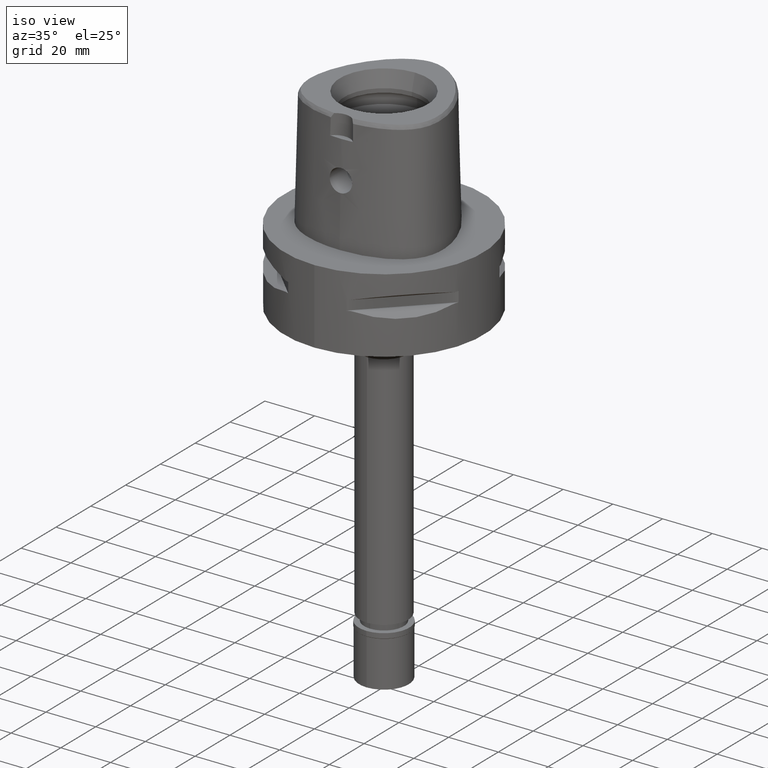
[diagram: clean part render]
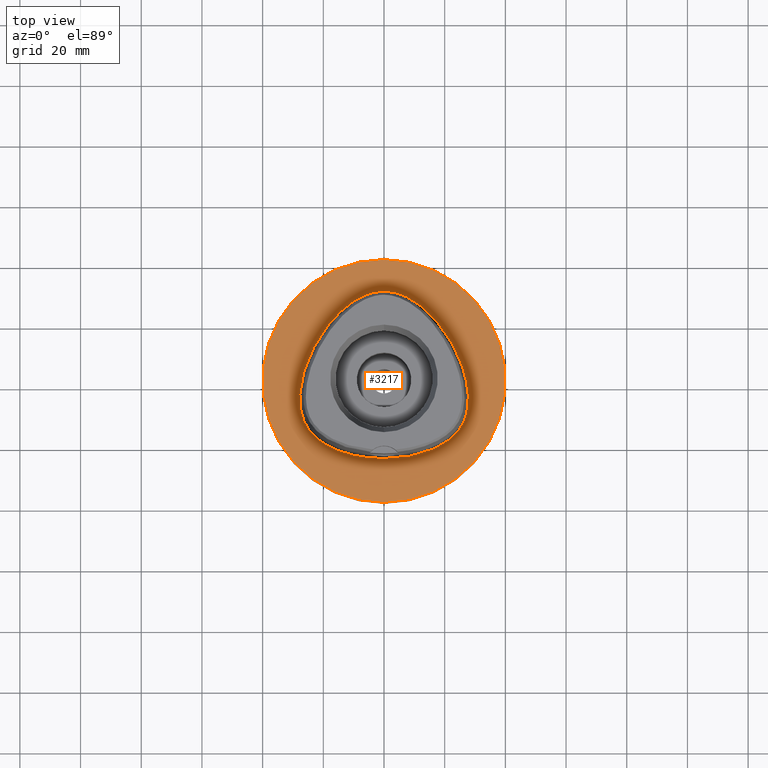
[diagram: tour spotlight — one face highlighted and labeled with its STEP entity id]
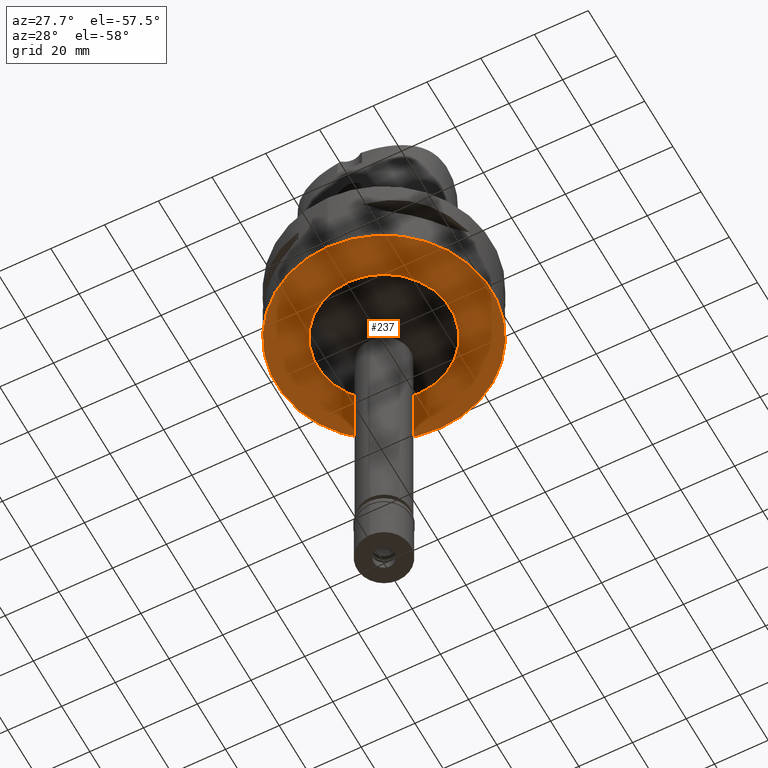
[diagram: tour spotlight — one face highlighted and labeled with its STEP entity id]
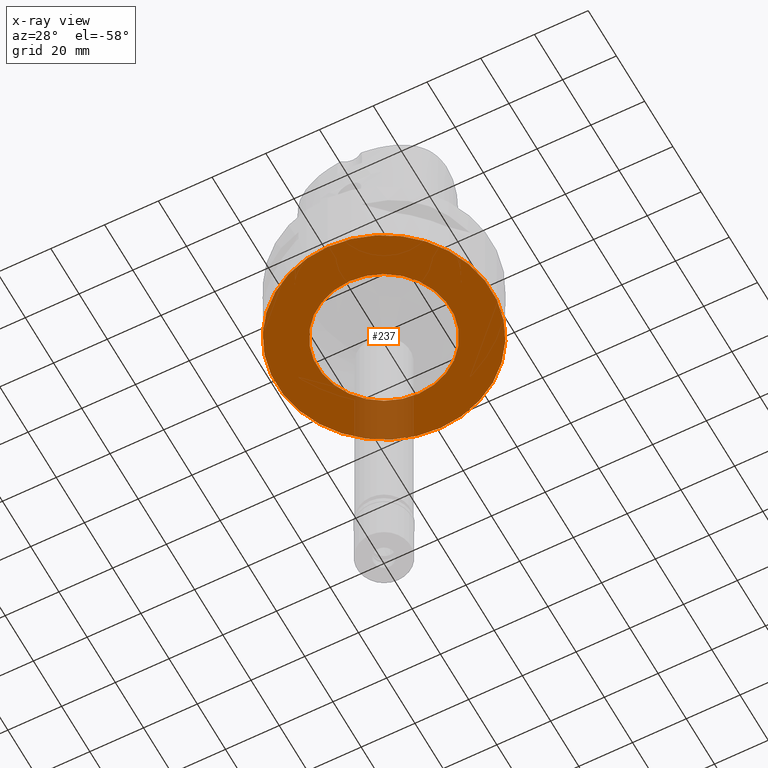
[diagram: x-ray of the same camera — body ghosted, this tour face saturated]
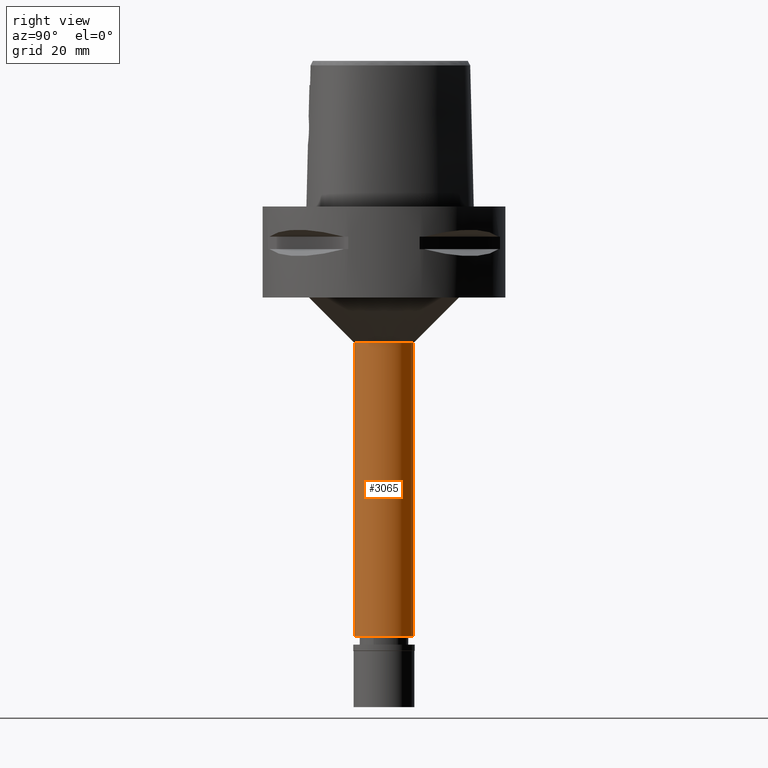
[diagram: tour spotlight — one face highlighted and labeled with its STEP entity id]
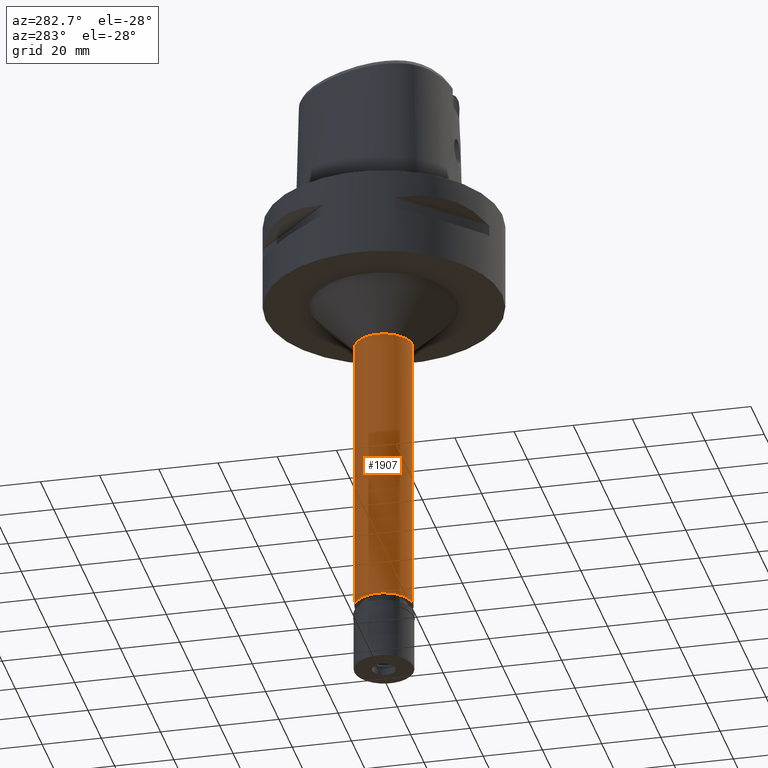
[diagram: tour spotlight — one face highlighted and labeled with its STEP entity id]
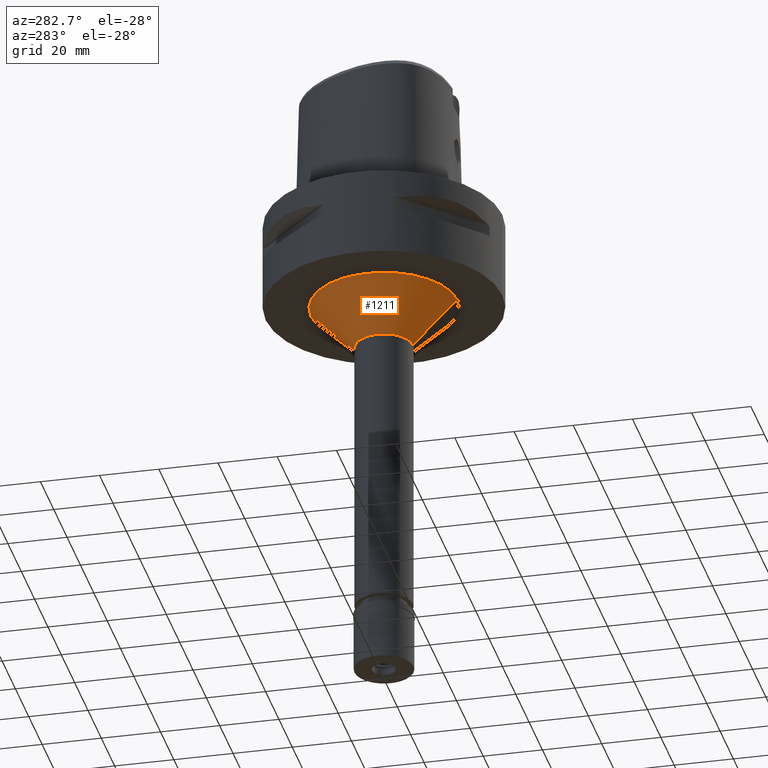
[diagram: tour spotlight — one face highlighted and labeled with its STEP entity id]
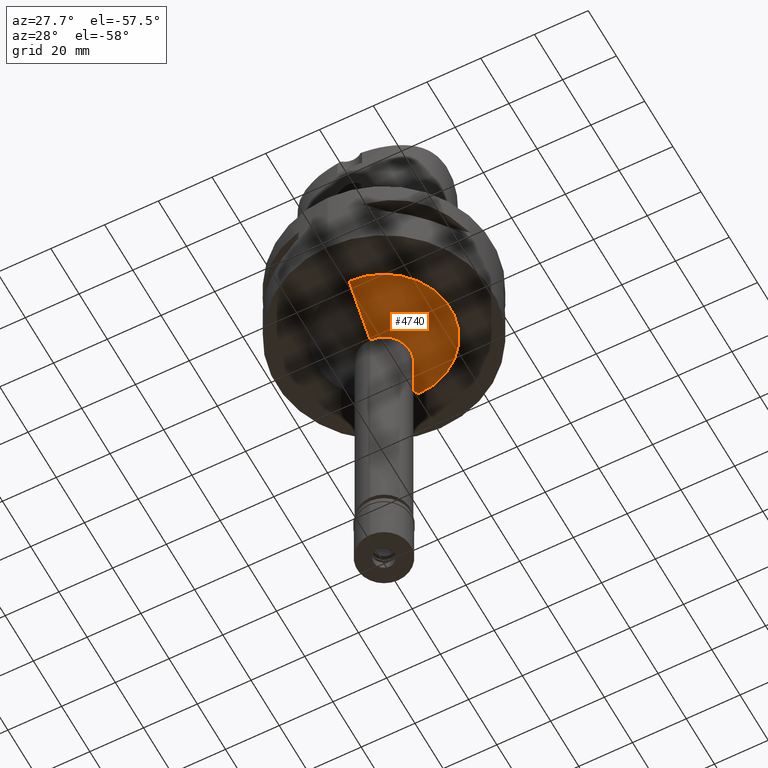
[diagram: tour spotlight — one face highlighted and labeled with its STEP entity id]
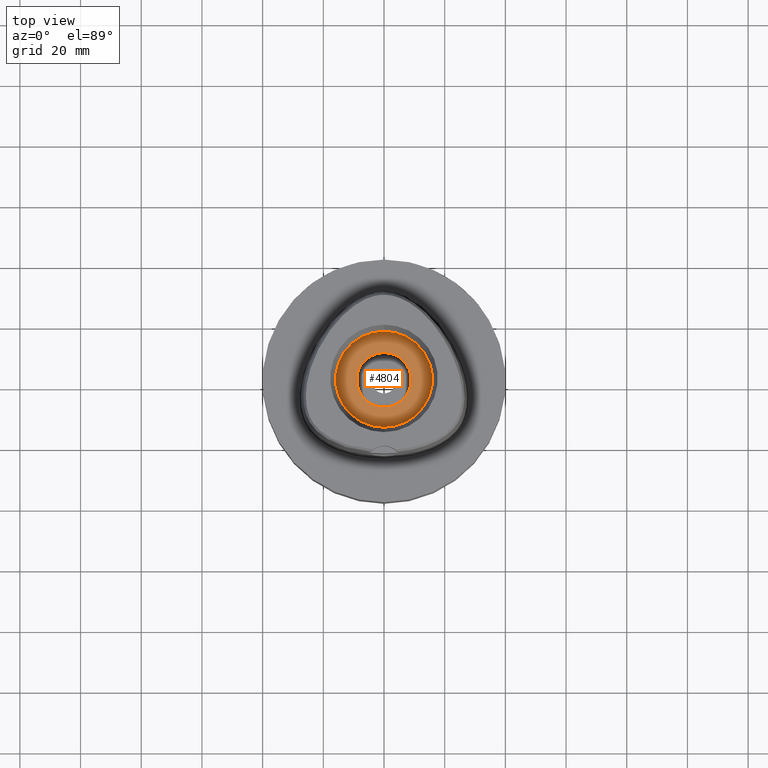
[diagram: tour spotlight — one face highlighted and labeled with its STEP entity id]
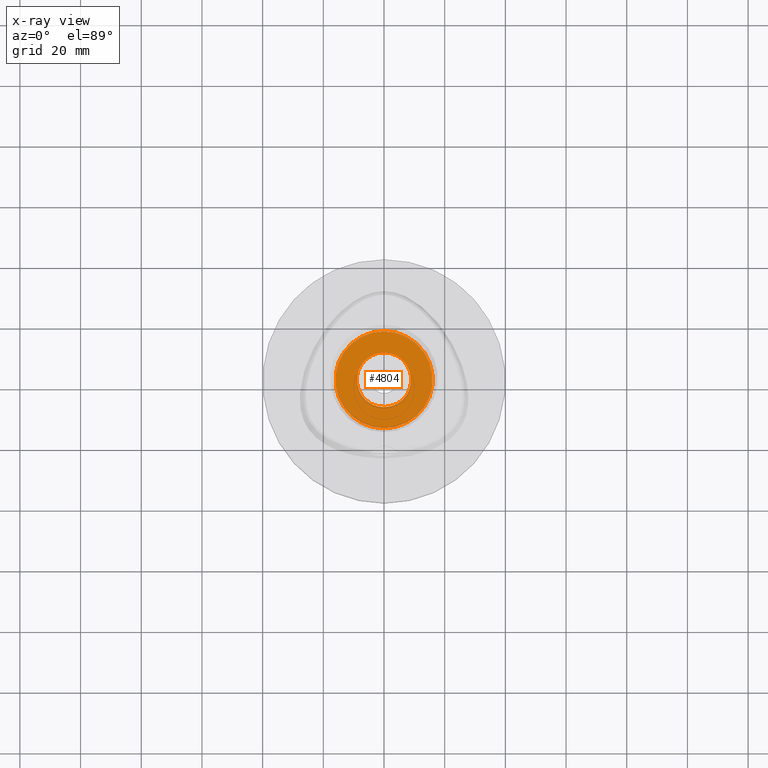
[diagram: x-ray of the same camera — body ghosted, this tour face saturated]
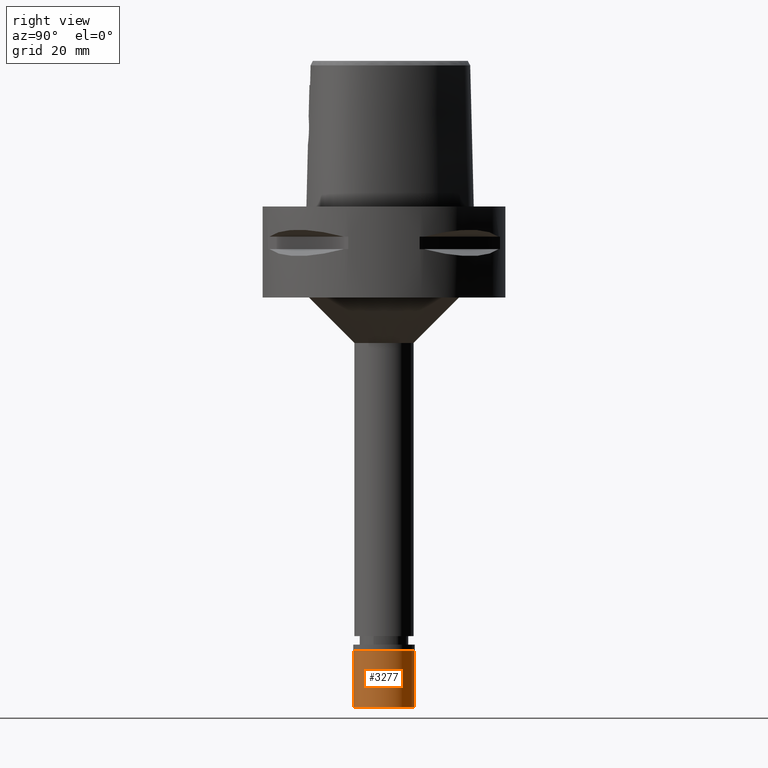
[diagram: tour spotlight — one face highlighted and labeled with its STEP entity id]
A machine part: a face-by-face anatomy tour. The part has 98 B-rep faces; the first image is the clean iso view, then the 8 largest visible faces are spotlighted one at a time (largest first), each with its STEP entity span.

Face 1 — top view, entity #3217. In plain terms, the highlighted planar face has unit normal (0, 0, -1).
Definition (entity closure, byte-faithful):
#14 = EDGE_CURVE ( 'NONE', #3583, #1457, #2103, .T. ) ;
#150 = CARTESIAN_POINT ( 'NONE',  ( 0.0000000000000000000, 40.00000000000000000, -2.131628207279999844E-14 ) ) ;
#220 = VERTEX_POINT ( 'NONE', #3888 ) ;
#245 = CARTESIAN_POINT ( 'NONE',  ( -3.149084873927517236, 29.34015624734590588, 1.081107220890151210E-07 ) ) ;
#330 = CARTESIAN_POINT ( 'NONE',  ( -25.20914249734864754, 6.827421873979051092, 1.081107220890151210E-07 ) ) ;
#361 = CARTESIAN_POINT ( 'NONE',  ( -1.049694957958702712, 29.57499999730015006, 1.081107220890151210E-07 ) ) ;
#429 = CARTESIAN_POINT ( 'NONE',  ( 22.33885471494222585, 12.89734378305838369, -2.633948435770173957E-06 ) ) ;
#648 = CARTESIAN_POINT ( 'NONE',  ( -18.55019648953511435, -21.45394531012197703, 1.081107220890151210E-07 ) ) ;
#700 = CARTESIAN_POINT ( 'NONE',  ( -25.63812389625229216, -14.80217773302317141, 1.081107220890151210E-07 ) ) ;
#827 = CARTESIAN_POINT ( 'NONE',  ( 18.55019652241081118, -21.45394537051418382, -2.633948435770173957E-06 ) ) ;
#852 = CARTESIAN_POINT ( 'NONE',  ( 9.304563441065136331, 26.79191411885718210, -2.633948435770173957E-06 ) ) ;
#894 = EDGE_CURVE ( 'NONE', #220, #4710, #1196, .T. ) ;
#904 = CARTESIAN_POINT ( 'NONE',  ( 23.43253033493974868, -17.76420414757017952, -2.633948435770173957E-06 ) ) ;
#905 = CARTESIAN_POINT ( 'NONE',  ( 0.0000000000000000000, 1.320781572880000066E-14, -2.131628207279999844E-14 ) ) ;
#931 = CARTESIAN_POINT ( 'NONE',  ( 17.75297956281007217, 19.52218754203904894, -2.633948435770173957E-06 ) ) ;
#1036 = DIRECTION ( 'NONE',  ( 0.0000000000000000000, 1.000000000000000000, 0.0000000000000000000 ) ) ;
#1067 = B_SPLINE_CURVE_WITH_KNOTS ( 'NONE', 3,
 ( #2315, #361, #245, #1902, #3871, #1852, #3897, #3929, #330, #3434, #2239, #1098, #5142, #1467, #2686, #700, #2292, #3483, #1569, #648, #3816, #5029, #5081, #3089, #4694 ),
 .UNSPECIFIED., .F., .F.,
 ( 4, 1, 1, 1, 1, 1, 1, 1, 1, 1, 1, 1, 1, 1, 1, 1, 1, 1, 1, 1, 1, 1, 4 ),
 ( 0.0000000000000000000, 0.04166666666704999661, 0.08333333333368000972, 0.1250000000003000100, 0.1666666666670000019, 0.2500000000002000067, 0.3333333333335000148, 0.4166666666668000230, 0.4583333333333999837, 0.5000000000001000311, 0.5416666666667000474, 0.5833333333333000637, 0.6250000000000000000, 0.6458333333333000637, 0.6666666666667000474, 0.6874999999999000799, 0.7083333333332000326, 0.7499999999999000799, 0.7916666666666000163, 0.8333333333331000015, 0.8749999999998000488, 0.9166666666664999852, 1.000000000000000000 ),
 .UNSPECIFIED. ) ;
#1098 = CARTESIAN_POINT ( 'NONE',  ( -27.85475989473649250, -5.337968750068384338, 1.081107220890151210E-07 ) ) ;
#1126 = AXIS2_PLACEMENT_3D ( 'NONE', #1342, #4515, #2919 ) ;
#1196 = B_SPLINE_CURVE_WITH_KNOTS ( 'NONE', 3,
 ( #2806, #2829, #3709, #1613, #1252, #827, #1689, #904, #4415, #4864, #2097, #4815, #4108, #1714, #3683, #4393, #3294, #429, #931, #2497, #852, #2446, #4025, #3198, #3999 ),
 .UNSPECIFIED., .F., .F.,
 ( 4, 1, 1, 1, 1, 1, 1, 1, 1, 1, 1, 1, 1, 1, 1, 1, 1, 1, 1, 1, 1, 1, 4 ),
 ( 0.0000000000000000000, 0.08333333333340001148, 0.1250000000000000000, 0.1666666666667000196, 0.2083333333333000081, 0.2500000000000000000, 0.2916666666666999919, 0.3124999999998999689, 0.3333333333332000326, 0.3541666666666000163, 0.3749999999998999689, 0.4166666666666000163, 0.4583333333332000326, 0.4999999999997999933, 0.5416666666664999852, 0.5833333333331000015, 0.6666666666664999852, 0.7499999999997000177, 0.8333333333329999704, 0.8749999999995999866, 0.9166666666663000340, 0.9583333333329000503, 1.000000000000000000 ),
 .UNSPECIFIED. ) ;
#1252 = CARTESIAN_POINT ( 'NONE',  ( 15.29776368685573118, -22.96525396773072814, -2.633948435770173957E-06 ) ) ;
#1342 = CARTESIAN_POINT ( 'NONE',  ( 0.0000000000000000000, 1.320781572880000066E-14, -2.131628207279999844E-14 ) ) ;
#1457 = VERTEX_POINT ( 'NONE', #2662 ) ;
#1460 = AXIS2_PLACEMENT_3D ( 'NONE', #1891, #3886, #4306 ) ;
#1467 = CARTESIAN_POINT ( 'NONE',  ( -27.10051717109255165, -11.41106445238337486, 1.081107220890151210E-07 ) ) ;
#1503 = FACE_BOUND ( 'NONE', #3933, .T. ) ;
#1531 = FACE_OUTER_BOUND ( 'NONE', #2159, .T. ) ;
#1569 = CARTESIAN_POINT ( 'NONE',  ( -21.42129059199266905, -19.59889648221216518, 1.081107220890151210E-07 ) ) ;
#1613 = CARTESIAN_POINT ( 'NONE',  ( 11.74025987196654874, -24.13566412617133494, -2.633948435770173957E-06 ) ) ;
#1689 = CARTESIAN_POINT ( 'NONE',  ( 21.42129063364858510, -19.59889653705179668, -2.633948435770173957E-06 ) ) ;
#1714 = CARTESIAN_POINT ( 'NONE',  ( 27.85475996346920624, -5.337968748343277170, -2.633948435770173957E-06 ) ) ;
#1832 = PLANE ( 'NONE',  #1460 ) ;
#1852 = CARTESIAN_POINT ( 'NONE',  ( -13.21796080366969761, 24.04386718545104884, 1.081107220890151210E-07 ) ) ;
#1891 = CARTESIAN_POINT ( 'NONE',  ( 0.0000000000000000000, 1.224646799146999965E-14, 0.0000000000000000000 ) ) ;
#1902 = CARTESIAN_POINT ( 'NONE',  ( -6.262496943741631128, 28.35083007561321367, 1.081107220890151210E-07 ) ) ;
#2097 = CARTESIAN_POINT ( 'NONE',  ( 26.34912743261734036, -13.39455080774210849, -2.633948435770173957E-06 ) ) ;
#2103 = CIRCLE ( 'NONE', #2352, 40.00000000000000000 ) ;
#2159 = EDGE_LOOP ( 'NONE', ( #2986, #5145 ) ) ;
#2239 = CARTESIAN_POINT ( 'NONE',  ( -27.53737511592663623, -1.765625000409068557, 1.081107220890151210E-07 ) ) ;
#2292 = CARTESIAN_POINT ( 'NONE',  ( -24.77458493275388918, -16.12173827965531459, 1.081107220890151210E-07 ) ) ;
#2315 = CARTESIAN_POINT ( 'NONE',  ( 3.059999461773999954E-11, 29.57499999998999840, 5.010806584474999824E-14 ) ) ;
#2352 = AXIS2_PLACEMENT_3D ( 'NONE', #905, #2498, #1036 ) ;
#2446 = CARTESIAN_POINT ( 'NONE',  ( 6.262496970401580043, 28.35083013911295069, -2.633948435770173957E-06 ) ) ;
#2497 = CARTESIAN_POINT ( 'NONE',  ( 13.21796084896444512, 24.04386723739236231, -2.633948435770173957E-06 ) ) ;
#2498 = DIRECTION ( 'NONE',  ( 0.0000000000000000000, 0.0000000000000000000, -1.000000000000000000 ) ) ;
#2518 = EDGE_CURVE ( 'NONE', #1457, #3583, #3853, .T. ) ;
#2662 = CARTESIAN_POINT ( 'NONE',  ( 0.0000000000000000000, -40.00000000000000000, -2.131628207279999844E-14 ) ) ;
#2686 = CARTESIAN_POINT ( 'NONE',  ( -26.34912736971354619, -13.39455078015881817, 1.081107220890151210E-07 ) ) ;
#2806 = CARTESIAN_POINT ( 'NONE',  ( -1.130678250848000183E-11, -25.57499999999999929, 5.651035195341998828E-14 ) ) ;
#2829 = CARTESIAN_POINT ( 'NONE',  ( 2.676740189128766989, -25.57500006583954644, -2.633948435770173957E-06 ) ) ;
#2919 = DIRECTION ( 'NONE',  ( 0.0000000000000000000, -1.000000000000000000, 0.0000000000000000000 ) ) ;
#2942 = ORIENTED_EDGE ( 'NONE', *, *, #4456, .F. ) ;
#2986 = ORIENTED_EDGE ( 'NONE', *, *, #14, .F. ) ;
#3089 = CARTESIAN_POINT ( 'NONE',  ( -2.676740185393376326, -25.57499999729582285, 1.081107220890151210E-07 ) ) ;
#3198 = CARTESIAN_POINT ( 'NONE',  ( 1.049694963074945697, 29.57500006583937235, -2.633948435770173957E-06 ) ) ;
#3217 = ADVANCED_FACE ( 'NONE', ( #1531, #1503 ), #1832, .F. ) ;
#3294 = CARTESIAN_POINT ( 'NONE',  ( 25.20914256104954276, 6.827421899879437817, -2.633948435770173957E-06 ) ) ;
#3434 = CARTESIAN_POINT ( 'NONE',  ( -26.77222814008693774, 1.900468749305304295, 1.081107220890151210E-07 ) ) ;
#3483 = CARTESIAN_POINT ( 'NONE',  ( -23.43253028553446882, -17.76420409967707670, 1.081107220890151210E-07 ) ) ;
#3583 = VERTEX_POINT ( 'NONE', #150 ) ;
#3683 = CARTESIAN_POINT ( 'NONE',  ( 27.53737518383180571, -1.765624990037506725, -2.633948435770173957E-06 ) ) ;
#3709 = CARTESIAN_POINT ( 'NONE',  ( 6.691850472877435507, -25.24546881543191645, -2.633948435770173533E-06 ) ) ;
#3816 = CARTESIAN_POINT ( 'NONE',  ( -15.29776366188092496, -22.96525390373262709, 1.081107220890151210E-07 ) ) ;
#3853 = CIRCLE ( 'NONE', #1126, 40.00000000000000000 ) ;
#3871 = CARTESIAN_POINT ( 'NONE',  ( -9.304563405199751003, 26.79191406018855659, 1.081107220890151210E-07 ) ) ;
#3886 = DIRECTION ( 'NONE',  ( 0.0000000000000000000, 0.0000000000000000000, -1.000000000000000000 ) ) ;
#3888 = CARTESIAN_POINT ( 'NONE',  ( -1.130678250848000183E-11, -25.57499999999999929, 5.651035195341998828E-14 ) ) ;
#3897 = CARTESIAN_POINT ( 'NONE',  ( -17.75297950960305116, 19.52218749826894850, 1.081107220890151210E-07 ) ) ;
#3929 = CARTESIAN_POINT ( 'NONE',  ( -22.33885465532980419, 12.89734374864895017, 1.081107220890151210E-07 ) ) ;
#3933 = EDGE_LOOP ( 'NONE', ( #2942, #4385 ) ) ;
#3999 = CARTESIAN_POINT ( 'NONE',  ( 3.059999461773999954E-11, 29.57499999998999840, 5.010806584474999824E-14 ) ) ;
#4025 = CARTESIAN_POINT ( 'NONE',  ( 3.149084888733518106, 29.34015631472895791, -2.633948435770173957E-06 ) ) ;
#4108 = CARTESIAN_POINT ( 'NONE',  ( 27.68378760405586192, -8.751933602060036677, -2.633948435770173957E-06 ) ) ;
#4306 = DIRECTION ( 'NONE',  ( 0.0000000000000000000, -1.000000000000000000, 0.0000000000000000000 ) ) ;
#4348 = CARTESIAN_POINT ( 'NONE',  ( 3.059999461773999954E-11, 29.57499999998999840, 5.010806584474999824E-14 ) ) ;
#4385 = ORIENTED_EDGE ( 'NONE', *, *, #894, .F. ) ;
#4393 = CARTESIAN_POINT ( 'NONE',  ( 26.77222820646014512, 1.900468766925591968, -2.633948435770173957E-06 ) ) ;
#4415 = CARTESIAN_POINT ( 'NONE',  ( 24.77458498809630072, -16.12173832031961496, -2.633948435770173957E-06 ) ) ;
#4456 = EDGE_CURVE ( 'NONE', #4710, #220, #1067, .T. ) ;
#4515 = DIRECTION ( 'NONE',  ( 0.0000000000000000000, 0.0000000000000000000, -1.000000000000000000 ) ) ;
#4694 = CARTESIAN_POINT ( 'NONE',  ( -1.130678250848000183E-11, -25.57499999999999929, 5.651035195341998828E-14 ) ) ;
#4710 = VERTEX_POINT ( 'NONE', #4348 ) ;
#4815 = CARTESIAN_POINT ( 'NONE',  ( 27.10051723727178086, -11.41106447122930234, -2.633948435770173957E-06 ) ) ;
#4864 = CARTESIAN_POINT ( 'NONE',  ( 25.63812395573939185, -14.80217776736918189, -2.633948435770173957E-06 ) ) ;
#5029 = CARTESIAN_POINT ( 'NONE',  ( -11.74025985405224226, -24.13566405988820662, 1.081107220890151210E-07 ) ) ;
#5081 = CARTESIAN_POINT ( 'NONE',  ( -6.691850463454485087, -25.24546874731456114, 1.081107220890151210E-07 ) ) ;
#5142 = CARTESIAN_POINT ( 'NONE',  ( -27.68378753573384188, -8.751933593408192991, 1.081107220890151210E-07 ) ) ;
#5145 = ORIENTED_EDGE ( 'NONE', *, *, #2518, .F. ) ;

Face 2 — auxiliary view, entity #237. An x-ray twin of the same camera follows (body ghosted, this face saturated) — the face is partly hidden behind the body. In plain terms, the highlighted planar face has unit normal (0, 0, -1).
Definition (entity closure, byte-faithful):
#1 = CARTESIAN_POINT ( 'NONE',  ( 0.0000000000000000000, 24.75000000000000000, -30.00000000000000000 ) ) ;
#20 = DIRECTION ( 'NONE',  ( 0.0000000000000000000, 0.0000000000000000000, -1.000000000000000000 ) ) ;
#40 = ORIENTED_EDGE ( 'NONE', *, *, #2521, .F. ) ;
#237 = ADVANCED_FACE ( 'NONE', ( #3945, #3133 ), #3528, .T. ) ;
#377 = CARTESIAN_POINT ( 'NONE',  ( 0.0000000000000000000, 0.0000000000000000000, -30.00000000000000000 ) ) ;
#956 = CARTESIAN_POINT ( 'NONE',  ( 0.0000000000000000000, 1.320781572880000066E-14, -30.00000000000000000 ) ) ;
#1096 = AXIS2_PLACEMENT_3D ( 'NONE', #4988, #3048, #5038 ) ;
#1232 = AXIS2_PLACEMENT_3D ( 'NONE', #2191, #1414, #2991 ) ;
#1357 = AXIS2_PLACEMENT_3D ( 'NONE', #377, #1973, #2528 ) ;
#1414 = DIRECTION ( 'NONE',  ( 0.0000000000000000000, 0.0000000000000000000, -1.000000000000000000 ) ) ;
#1436 = CARTESIAN_POINT ( 'NONE',  ( 0.0000000000000000000, -24.75000000000000000, -30.00000000000000000 ) ) ;
#1579 = DIRECTION ( 'NONE',  ( 0.0000000000000000000, -1.000000000000000000, 0.0000000000000000000 ) ) ;
#1620 = ORIENTED_EDGE ( 'NONE', *, *, #3430, .F. ) ;
#1684 = CARTESIAN_POINT ( 'NONE',  ( 0.0000000000000000000, 40.00000000000000000, -30.00000000000000000 ) ) ;
#1924 = VERTEX_POINT ( 'NONE', #1436 ) ;
#1973 = DIRECTION ( 'NONE',  ( 0.0000000000000000000, 0.0000000000000000000, -1.000000000000000000 ) ) ;
#1987 = ORIENTED_EDGE ( 'NONE', *, *, #3861, .F. ) ;
#2086 = EDGE_LOOP ( 'NONE', ( #40, #1987 ) ) ;
#2131 = CIRCLE ( 'NONE', #1232, 24.75000000000000000 ) ;
#2191 = CARTESIAN_POINT ( 'NONE',  ( 0.0000000000000000000, 0.0000000000000000000, -30.00000000000000000 ) ) ;
#2521 = EDGE_CURVE ( 'NONE', #3537, #3009, #4532, .T. ) ;
#2528 = DIRECTION ( 'NONE',  ( 0.0000000000000000000, -1.000000000000000000, 0.0000000000000000000 ) ) ;
#2544 = DIRECTION ( 'NONE',  ( 0.0000000000000000000, 1.000000000000000000, 0.0000000000000000000 ) ) ;
#2767 = EDGE_CURVE ( 'NONE', #5026, #1924, #2131, .T. ) ;
#2803 = CARTESIAN_POINT ( 'NONE',  ( 0.0000000000000000000, 0.0000000000000000000, -30.00000000000000000 ) ) ;
#2991 = DIRECTION ( 'NONE',  ( 0.0000000000000000000, 1.000000000000000000, 0.0000000000000000000 ) ) ;
#3009 = VERTEX_POINT ( 'NONE', #4154 ) ;
#3048 = DIRECTION ( 'NONE',  ( 0.0000000000000000000, 0.0000000000000000000, 1.000000000000000000 ) ) ;
#3133 = FACE_BOUND ( 'NONE', #3514, .T. ) ;
#3430 = EDGE_CURVE ( 'NONE', #1924, #5026, #4452, .T. ) ;
#3514 = EDGE_LOOP ( 'NONE', ( #4230, #1620 ) ) ;
#3528 = PLANE ( 'NONE',  #1357 ) ;
#3537 = VERTEX_POINT ( 'NONE', #1684 ) ;
#3861 = EDGE_CURVE ( 'NONE', #3009, #3537, #4581, .T. ) ;
#3945 = FACE_OUTER_BOUND ( 'NONE', #2086, .T. ) ;
#4128 = DIRECTION ( 'NONE',  ( 0.0000000000000000000, 0.0000000000000000000, 1.000000000000000000 ) ) ;
#4154 = CARTESIAN_POINT ( 'NONE',  ( 0.0000000000000000000, -40.00000000000000000, -30.00000000000000000 ) ) ;
#4230 = ORIENTED_EDGE ( 'NONE', *, *, #2767, .F. ) ;
#4452 = CIRCLE ( 'NONE', #4791, 24.75000000000000000 ) ;
#4532 = CIRCLE ( 'NONE', #4968, 40.00000000000000000 ) ;
#4581 = CIRCLE ( 'NONE', #1096, 40.00000000000000000 ) ;
#4791 = AXIS2_PLACEMENT_3D ( 'NONE', #2803, #20, #1579 ) ;
#4968 = AXIS2_PLACEMENT_3D ( 'NONE', #956, #4128, #2544 ) ;
#4988 = CARTESIAN_POINT ( 'NONE',  ( 0.0000000000000000000, 1.320781572880000066E-14, -30.00000000000000000 ) ) ;
#5026 = VERTEX_POINT ( 'NONE', #1 ) ;
#5038 = DIRECTION ( 'NONE',  ( 0.0000000000000000000, -1.000000000000000000, 0.0000000000000000000 ) ) ;

Face 3 — right view, entity #3065. In plain terms, the highlighted cylindrical surface (edge-blend (fillet) strip) has radius 9.75 mm, axis along (0, 0, -1).
Definition (entity closure, byte-faithful):
#44 = EDGE_CURVE ( 'NONE', #4582, #2813, #2975, .T. ) ;
#73 = VECTOR ( 'NONE', #4234, 1000.000000000000000 ) ;
#318 = CARTESIAN_POINT ( 'NONE',  ( 0.0000000000000000000, 1.320781572880000066E-14, 7.849999999999999645 ) ) ;
#413 = EDGE_CURVE ( 'NONE', #2813, #2818, #1606, .T. ) ;
#415 = CARTESIAN_POINT ( 'NONE',  ( 0.0000000000000000000, -9.750000000000000000, -45.00000000000000000 ) ) ;
#656 = CARTESIAN_POINT ( 'NONE',  ( 0.0000000000000000000, -9.750000000000000000, -45.00000000000000000 ) ) ;
#685 = DIRECTION ( 'NONE',  ( 0.0000000000000000000, 0.0000000000000000000, -1.000000000000000000 ) ) ;
#882 = ORIENTED_EDGE ( 'NONE', *, *, #4396, .F. ) ;
#1061 = DIRECTION ( 'NONE',  ( 0.0000000000000000000, 0.0000000000000000000, -1.000000000000000000 ) ) ;
#1155 = LINE ( 'NONE', #1879, #73 ) ;
#1187 = EDGE_CURVE ( 'NONE', #1578, #4582, #2187, .T. ) ;
#1533 = DIRECTION ( 'NONE',  ( 0.0000000000000000000, 0.0000000000000000000, 1.000000000000000000 ) ) ;
#1578 = VERTEX_POINT ( 'NONE', #1908 ) ;
#1606 = CIRCLE ( 'NONE', #4509, 9.750000000000000000 ) ;
#1788 = AXIS2_PLACEMENT_3D ( 'NONE', #318, #1914, #4705 ) ;
#1879 = CARTESIAN_POINT ( 'NONE',  ( 0.0000000000000000000, 9.750000000000000000, -45.00000000000000000 ) ) ;
#1908 = CARTESIAN_POINT ( 'NONE',  ( 0.0000000000000000000, 9.750000000000000000, -45.00000000000000000 ) ) ;
#1914 = DIRECTION ( 'NONE',  ( 0.0000000000000000000, 0.0000000000000000000, -1.000000000000000000 ) ) ;
#1916 = CARTESIAN_POINT ( 'NONE',  ( 0.0000000000000000000, 1.320781572880000066E-14, -141.5999999999999943 ) ) ;
#1957 = CARTESIAN_POINT ( 'NONE',  ( 0.0000000000000000000, -9.750000000000000000, -141.5999999999999943 ) ) ;
#2058 = ORIENTED_EDGE ( 'NONE', *, *, #413, .T. ) ;
#2187 = CIRCLE ( 'NONE', #4941, 9.750000000000000000 ) ;
#2261 = ORIENTED_EDGE ( 'NONE', *, *, #1187, .T. ) ;
#2262 = VECTOR ( 'NONE', #685, 1000.000000000000000 ) ;
#2316 = CARTESIAN_POINT ( 'NONE',  ( 0.0000000000000000000, 9.750000000000000000, -141.5999999999999943 ) ) ;
#2570 = EDGE_LOOP ( 'NONE', ( #2261, #4322, #2058, #882 ) ) ;
#2625 = CYLINDRICAL_SURFACE ( 'NONE', #1788, 9.750000000000000000 ) ;
#2646 = DIRECTION ( 'NONE',  ( 0.0000000000000000000, 1.000000000000000000, 0.0000000000000000000 ) ) ;
#2813 = VERTEX_POINT ( 'NONE', #1957 ) ;
#2818 = VERTEX_POINT ( 'NONE', #2316 ) ;
#2975 = LINE ( 'NONE', #656, #2262 ) ;
#3065 = ADVANCED_FACE ( 'NONE', ( #5097 ), #2625, .T. ) ;
#3106 = DIRECTION ( 'NONE',  ( 0.0000000000000000000, -1.000000000000000000, 0.0000000000000000000 ) ) ;
#4234 = DIRECTION ( 'NONE',  ( 0.0000000000000000000, 0.0000000000000000000, -1.000000000000000000 ) ) ;
#4322 = ORIENTED_EDGE ( 'NONE', *, *, #44, .T. ) ;
#4396 = EDGE_CURVE ( 'NONE', #1578, #2818, #1155, .T. ) ;
#4509 = AXIS2_PLACEMENT_3D ( 'NONE', #1916, #1533, #3106 ) ;
#4582 = VERTEX_POINT ( 'NONE', #415 ) ;
#4623 = CARTESIAN_POINT ( 'NONE',  ( 0.0000000000000000000, 0.0000000000000000000, -45.00000000000000000 ) ) ;
#4705 = DIRECTION ( 'NONE',  ( 0.0000000000000000000, -1.000000000000000000, 0.0000000000000000000 ) ) ;
#4941 = AXIS2_PLACEMENT_3D ( 'NONE', #4623, #1061, #2646 ) ;
#5097 = FACE_OUTER_BOUND ( 'NONE', #2570, .T. ) ;

Face 4 — auxiliary view, entity #1907. In plain terms, the highlighted cylindrical surface (edge-blend (fillet) strip) has radius 9.75 mm, axis along (0, 0, -1).
Definition (entity closure, byte-faithful):
#44 = EDGE_CURVE ( 'NONE', #4582, #2813, #2975, .T. ) ;
#73 = VECTOR ( 'NONE', #4234, 1000.000000000000000 ) ;
#305 = DIRECTION ( 'NONE',  ( 0.0000000000000000000, 0.0000000000000000000, 1.000000000000000000 ) ) ;
#415 = CARTESIAN_POINT ( 'NONE',  ( 0.0000000000000000000, -9.750000000000000000, -45.00000000000000000 ) ) ;
#540 = ORIENTED_EDGE ( 'NONE', *, *, #4392, .T. ) ;
#656 = CARTESIAN_POINT ( 'NONE',  ( 0.0000000000000000000, -9.750000000000000000, -45.00000000000000000 ) ) ;
#685 = DIRECTION ( 'NONE',  ( 0.0000000000000000000, 0.0000000000000000000, -1.000000000000000000 ) ) ;
#1075 = DIRECTION ( 'NONE',  ( 0.0000000000000000000, 1.000000000000000000, 0.0000000000000000000 ) ) ;
#1155 = LINE ( 'NONE', #1879, #73 ) ;
#1464 = DIRECTION ( 'NONE',  ( 0.0000000000000000000, -1.000000000000000000, 0.0000000000000000000 ) ) ;
#1541 = DIRECTION ( 'NONE',  ( 0.0000000000000000000, 0.0000000000000000000, -1.000000000000000000 ) ) ;
#1578 = VERTEX_POINT ( 'NONE', #1908 ) ;
#1749 = ORIENTED_EDGE ( 'NONE', *, *, #2737, .T. ) ;
#1853 = CARTESIAN_POINT ( 'NONE',  ( 0.0000000000000000000, 0.0000000000000000000, -45.00000000000000000 ) ) ;
#1879 = CARTESIAN_POINT ( 'NONE',  ( 0.0000000000000000000, 9.750000000000000000, -45.00000000000000000 ) ) ;
#1907 = ADVANCED_FACE ( 'NONE', ( #5004 ), #5111, .T. ) ;
#1908 = CARTESIAN_POINT ( 'NONE',  ( 0.0000000000000000000, 9.750000000000000000, -45.00000000000000000 ) ) ;
#1957 = CARTESIAN_POINT ( 'NONE',  ( 0.0000000000000000000, -9.750000000000000000, -141.5999999999999943 ) ) ;
#2262 = VECTOR ( 'NONE', #685, 1000.000000000000000 ) ;
#2316 = CARTESIAN_POINT ( 'NONE',  ( 0.0000000000000000000, 9.750000000000000000, -141.5999999999999943 ) ) ;
#2658 = DIRECTION ( 'NONE',  ( 0.0000000000000000000, 0.0000000000000000000, -1.000000000000000000 ) ) ;
#2737 = EDGE_CURVE ( 'NONE', #4582, #1578, #4543, .T. ) ;
#2813 = VERTEX_POINT ( 'NONE', #1957 ) ;
#2818 = VERTEX_POINT ( 'NONE', #2316 ) ;
#2975 = LINE ( 'NONE', #656, #2262 ) ;
#3327 = ORIENTED_EDGE ( 'NONE', *, *, #44, .F. ) ;
#3409 = AXIS2_PLACEMENT_3D ( 'NONE', #5054, #305, #1075 ) ;
#3456 = AXIS2_PLACEMENT_3D ( 'NONE', #1853, #2658, #5055 ) ;
#3956 = EDGE_LOOP ( 'NONE', ( #540, #3327, #1749, #4691 ) ) ;
#4233 = CARTESIAN_POINT ( 'NONE',  ( 0.0000000000000000000, 1.320781572880000066E-14, 7.849999999999999645 ) ) ;
#4234 = DIRECTION ( 'NONE',  ( 0.0000000000000000000, 0.0000000000000000000, -1.000000000000000000 ) ) ;
#4329 = CIRCLE ( 'NONE', #3409, 9.750000000000000000 ) ;
#4392 = EDGE_CURVE ( 'NONE', #2818, #2813, #4329, .T. ) ;
#4396 = EDGE_CURVE ( 'NONE', #1578, #2818, #1155, .T. ) ;
#4540 = AXIS2_PLACEMENT_3D ( 'NONE', #4233, #1541, #1464 ) ;
#4543 = CIRCLE ( 'NONE', #3456, 9.750000000000000000 ) ;
#4582 = VERTEX_POINT ( 'NONE', #415 ) ;
#4691 = ORIENTED_EDGE ( 'NONE', *, *, #4396, .T. ) ;
#5004 = FACE_OUTER_BOUND ( 'NONE', #3956, .T. ) ;
#5054 = CARTESIAN_POINT ( 'NONE',  ( 0.0000000000000000000, 1.320781572880000066E-14, -141.5999999999999943 ) ) ;
#5055 = DIRECTION ( 'NONE',  ( 0.0000000000000000000, -1.000000000000000000, 0.0000000000000000000 ) ) ;
#5111 = CYLINDRICAL_SURFACE ( 'NONE', #4540, 9.750000000000000000 ) ;

Face 5 — auxiliary view, entity #1211. In plain terms, the highlighted conical surface has half-angle 45 deg.
Definition (entity closure, byte-faithful):
#1 = CARTESIAN_POINT ( 'NONE',  ( 0.0000000000000000000, 24.75000000000000000, -30.00000000000000000 ) ) ;
#4 = ORIENTED_EDGE ( 'NONE', *, *, #384, .F. ) ;
#20 = DIRECTION ( 'NONE',  ( 0.0000000000000000000, 0.0000000000000000000, -1.000000000000000000 ) ) ;
#342 = CARTESIAN_POINT ( 'NONE',  ( 0.0000000000000000000, 0.0000000000000000000, -37.50000000000000000 ) ) ;
#384 = EDGE_CURVE ( 'NONE', #1924, #4582, #5070, .T. ) ;
#415 = CARTESIAN_POINT ( 'NONE',  ( 0.0000000000000000000, -9.750000000000000000, -45.00000000000000000 ) ) ;
#742 = CARTESIAN_POINT ( 'NONE',  ( 0.0000000000000000000, -24.75000000000000000, -30.00000000000000000 ) ) ;
#1211 = ADVANCED_FACE ( 'NONE', ( #3825 ), #4776, .T. ) ;
#1436 = CARTESIAN_POINT ( 'NONE',  ( 0.0000000000000000000, -24.75000000000000000, -30.00000000000000000 ) ) ;
#1553 = DIRECTION ( 'NONE',  ( 0.0000000000000000000, 1.000000000000000000, 0.0000000000000000000 ) ) ;
#1578 = VERTEX_POINT ( 'NONE', #1908 ) ;
#1579 = DIRECTION ( 'NONE',  ( 0.0000000000000000000, -1.000000000000000000, 0.0000000000000000000 ) ) ;
#1696 = ORIENTED_EDGE ( 'NONE', *, *, #3044, .T. ) ;
#1853 = CARTESIAN_POINT ( 'NONE',  ( 0.0000000000000000000, 0.0000000000000000000, -45.00000000000000000 ) ) ;
#1908 = CARTESIAN_POINT ( 'NONE',  ( 0.0000000000000000000, 9.750000000000000000, -45.00000000000000000 ) ) ;
#1924 = VERTEX_POINT ( 'NONE', #1436 ) ;
#2074 = ORIENTED_EDGE ( 'NONE', *, *, #2737, .F. ) ;
#2183 = VECTOR ( 'NONE', #2331, 1000.000000000000114 ) ;
#2331 = DIRECTION ( 'NONE',  ( 0.0000000000000000000, 0.7071067811865474617, -0.7071067811865474617 ) ) ;
#2398 = EDGE_LOOP ( 'NONE', ( #2074, #4, #3972, #1696 ) ) ;
#2658 = DIRECTION ( 'NONE',  ( 0.0000000000000000000, 0.0000000000000000000, -1.000000000000000000 ) ) ;
#2722 = DIRECTION ( 'NONE',  ( 0.0000000000000000000, 0.0000000000000000000, 1.000000000000000000 ) ) ;
#2737 = EDGE_CURVE ( 'NONE', #4582, #1578, #4543, .T. ) ;
#2803 = CARTESIAN_POINT ( 'NONE',  ( 0.0000000000000000000, 0.0000000000000000000, -30.00000000000000000 ) ) ;
#3044 = EDGE_CURVE ( 'NONE', #5026, #1578, #3686, .T. ) ;
#3430 = EDGE_CURVE ( 'NONE', #1924, #5026, #4452, .T. ) ;
#3456 = AXIS2_PLACEMENT_3D ( 'NONE', #1853, #2658, #5055 ) ;
#3497 = CARTESIAN_POINT ( 'NONE',  ( 0.0000000000000000000, 24.75000000000000000, -30.00000000000000000 ) ) ;
#3629 = VECTOR ( 'NONE', #4677, 1000.000000000000114 ) ;
#3686 = LINE ( 'NONE', #3497, #3629 ) ;
#3825 = FACE_OUTER_BOUND ( 'NONE', #2398, .T. ) ;
#3972 = ORIENTED_EDGE ( 'NONE', *, *, #3430, .T. ) ;
#4107 = AXIS2_PLACEMENT_3D ( 'NONE', #342, #2722, #1553 ) ;
#4452 = CIRCLE ( 'NONE', #4791, 24.75000000000000000 ) ;
#4543 = CIRCLE ( 'NONE', #3456, 9.750000000000000000 ) ;
#4582 = VERTEX_POINT ( 'NONE', #415 ) ;
#4677 = DIRECTION ( 'NONE',  ( 0.0000000000000000000, -0.7071067811865474617, -0.7071067811865474617 ) ) ;
#4776 = CONICAL_SURFACE ( 'NONE', #4107, 17.25000000000000000, 0.7853981633972997312 ) ;
#4791 = AXIS2_PLACEMENT_3D ( 'NONE', #2803, #20, #1579 ) ;
#5026 = VERTEX_POINT ( 'NONE', #1 ) ;
#5055 = DIRECTION ( 'NONE',  ( 0.0000000000000000000, -1.000000000000000000, 0.0000000000000000000 ) ) ;
#5070 = LINE ( 'NONE', #742, #2183 ) ;

Face 6 — auxiliary view, entity #4740. In plain terms, the highlighted conical surface has half-angle 45 deg.
Definition (entity closure, byte-faithful):
#1 = CARTESIAN_POINT ( 'NONE',  ( 0.0000000000000000000, 24.75000000000000000, -30.00000000000000000 ) ) ;
#384 = EDGE_CURVE ( 'NONE', #1924, #4582, #5070, .T. ) ;
#415 = CARTESIAN_POINT ( 'NONE',  ( 0.0000000000000000000, -9.750000000000000000, -45.00000000000000000 ) ) ;
#742 = CARTESIAN_POINT ( 'NONE',  ( 0.0000000000000000000, -24.75000000000000000, -30.00000000000000000 ) ) ;
#910 = ORIENTED_EDGE ( 'NONE', *, *, #2767, .T. ) ;
#1061 = DIRECTION ( 'NONE',  ( 0.0000000000000000000, 0.0000000000000000000, -1.000000000000000000 ) ) ;
#1187 = EDGE_CURVE ( 'NONE', #1578, #4582, #2187, .T. ) ;
#1232 = AXIS2_PLACEMENT_3D ( 'NONE', #2191, #1414, #2991 ) ;
#1414 = DIRECTION ( 'NONE',  ( 0.0000000000000000000, 0.0000000000000000000, -1.000000000000000000 ) ) ;
#1436 = CARTESIAN_POINT ( 'NONE',  ( 0.0000000000000000000, -24.75000000000000000, -30.00000000000000000 ) ) ;
#1578 = VERTEX_POINT ( 'NONE', #1908 ) ;
#1908 = CARTESIAN_POINT ( 'NONE',  ( 0.0000000000000000000, 9.750000000000000000, -45.00000000000000000 ) ) ;
#1924 = VERTEX_POINT ( 'NONE', #1436 ) ;
#1984 = CARTESIAN_POINT ( 'NONE',  ( 0.0000000000000000000, 0.0000000000000000000, -37.50000000000000000 ) ) ;
#2131 = CIRCLE ( 'NONE', #1232, 24.75000000000000000 ) ;
#2170 = CONICAL_SURFACE ( 'NONE', #3412, 17.25000000000000000, 0.7853981633972997312 ) ;
#2183 = VECTOR ( 'NONE', #2331, 1000.000000000000114 ) ;
#2187 = CIRCLE ( 'NONE', #4941, 9.750000000000000000 ) ;
#2191 = CARTESIAN_POINT ( 'NONE',  ( 0.0000000000000000000, 0.0000000000000000000, -30.00000000000000000 ) ) ;
#2331 = DIRECTION ( 'NONE',  ( 0.0000000000000000000, 0.7071067811865474617, -0.7071067811865474617 ) ) ;
#2371 = FACE_OUTER_BOUND ( 'NONE', #3432, .T. ) ;
#2410 = ORIENTED_EDGE ( 'NONE', *, *, #1187, .F. ) ;
#2646 = DIRECTION ( 'NONE',  ( 0.0000000000000000000, 1.000000000000000000, 0.0000000000000000000 ) ) ;
#2767 = EDGE_CURVE ( 'NONE', #5026, #1924, #2131, .T. ) ;
#2991 = DIRECTION ( 'NONE',  ( 0.0000000000000000000, 1.000000000000000000, 0.0000000000000000000 ) ) ;
#3044 = EDGE_CURVE ( 'NONE', #5026, #1578, #3686, .T. ) ;
#3176 = DIRECTION ( 'NONE',  ( 0.0000000000000000000, 1.000000000000000000, 0.0000000000000000000 ) ) ;
#3412 = AXIS2_PLACEMENT_3D ( 'NONE', #1984, #3566, #3176 ) ;
#3432 = EDGE_LOOP ( 'NONE', ( #910, #4361, #2410, #4528 ) ) ;
#3497 = CARTESIAN_POINT ( 'NONE',  ( 0.0000000000000000000, 24.75000000000000000, -30.00000000000000000 ) ) ;
#3566 = DIRECTION ( 'NONE',  ( 0.0000000000000000000, 0.0000000000000000000, 1.000000000000000000 ) ) ;
#3629 = VECTOR ( 'NONE', #4677, 1000.000000000000114 ) ;
#3686 = LINE ( 'NONE', #3497, #3629 ) ;
#4361 = ORIENTED_EDGE ( 'NONE', *, *, #384, .T. ) ;
#4528 = ORIENTED_EDGE ( 'NONE', *, *, #3044, .F. ) ;
#4582 = VERTEX_POINT ( 'NONE', #415 ) ;
#4623 = CARTESIAN_POINT ( 'NONE',  ( 0.0000000000000000000, 0.0000000000000000000, -45.00000000000000000 ) ) ;
#4677 = DIRECTION ( 'NONE',  ( 0.0000000000000000000, -0.7071067811865474617, -0.7071067811865474617 ) ) ;
#4740 = ADVANCED_FACE ( 'NONE', ( #2371 ), #2170, .T. ) ;
#4941 = AXIS2_PLACEMENT_3D ( 'NONE', #4623, #1061, #2646 ) ;
#5026 = VERTEX_POINT ( 'NONE', #1 ) ;
#5070 = LINE ( 'NONE', #742, #2183 ) ;

Face 7 — top view, entity #4804. An x-ray twin of the same camera follows (body ghosted, this face saturated) — the face is partly hidden behind the body. In plain terms, the highlighted planar face has unit normal (0, 0, -1).
Definition (entity closure, byte-faithful):
#90 = DIRECTION ( 'NONE',  ( 0.0000000000000000000, 0.0000000000000000000, -1.000000000000000000 ) ) ;
#250 = ORIENTED_EDGE ( 'NONE', *, *, #1056, .F. ) ;
#273 = EDGE_CURVE ( 'NONE', #2480, #479, #3679, .T. ) ;
#282 = CIRCLE ( 'NONE', #2629, 16.00000000000000000 ) ;
#479 = VERTEX_POINT ( 'NONE', #3008 ) ;
#495 = ORIENTED_EDGE ( 'NONE', *, *, #1663, .F. ) ;
#510 = ORIENTED_EDGE ( 'NONE', *, *, #4991, .F. ) ;
#519 = DIRECTION ( 'NONE',  ( 0.0000000000000000000, 0.0000000000000000000, -1.000000000000000000 ) ) ;
#549 = FACE_OUTER_BOUND ( 'NONE', #4032, .T. ) ;
#570 = PLANE ( 'NONE',  #2759 ) ;
#773 = VERTEX_POINT ( 'NONE', #2430 ) ;
#802 = DIRECTION ( 'NONE',  ( 0.0000000000000000000, -1.000000000000000000, 0.0000000000000000000 ) ) ;
#833 = DIRECTION ( 'NONE',  ( 0.0000000000000000000, -1.000000000000000000, 0.0000000000000000000 ) ) ;
#972 = CARTESIAN_POINT ( 'NONE',  ( 0.0000000000000000000, 0.0000000000000000000, 20.00000000000000000 ) ) ;
#1056 = EDGE_CURVE ( 'NONE', #479, #2480, #5019, .T. ) ;
#1242 = DIRECTION ( 'NONE',  ( 0.0000000000000000000, 1.000000000000000000, 0.0000000000000000000 ) ) ;
#1279 = CARTESIAN_POINT ( 'NONE',  ( 0.0000000000000000000, 0.0000000000000000000, 20.00000000000000000 ) ) ;
#1442 = AXIS2_PLACEMENT_3D ( 'NONE', #2700, #4789, #802 ) ;
#1663 = EDGE_CURVE ( 'NONE', #773, #5094, #282, .T. ) ;
#1830 = DIRECTION ( 'NONE',  ( 0.0000000000000000000, 0.0000000000000000000, 1.000000000000000000 ) ) ;
#1842 = CIRCLE ( 'NONE', #2593, 16.00000000000000000 ) ;
#2185 = FACE_BOUND ( 'NONE', #3381, .T. ) ;
#2416 = CARTESIAN_POINT ( 'NONE',  ( 0.0000000000000000000, -9.000000000000000000, 20.00000000000000000 ) ) ;
#2430 = CARTESIAN_POINT ( 'NONE',  ( 0.0000000000000000000, 16.00000000000000000, 20.00000000000000000 ) ) ;
#2480 = VERTEX_POINT ( 'NONE', #2416 ) ;
#2582 = DIRECTION ( 'NONE',  ( 0.0000000000000000000, -1.000000000000000000, 0.0000000000000000000 ) ) ;
#2593 = AXIS2_PLACEMENT_3D ( 'NONE', #1279, #3585, #833 ) ;
#2629 = AXIS2_PLACEMENT_3D ( 'NONE', #2795, #90, #1242 ) ;
#2700 = CARTESIAN_POINT ( 'NONE',  ( 0.0000000000000000000, 0.0000000000000000000, 20.00000000000000000 ) ) ;
#2759 = AXIS2_PLACEMENT_3D ( 'NONE', #972, #519, #2582 ) ;
#2776 = AXIS2_PLACEMENT_3D ( 'NONE', #4223, #1830, #4176 ) ;
#2795 = CARTESIAN_POINT ( 'NONE',  ( 0.0000000000000000000, 0.0000000000000000000, 20.00000000000000000 ) ) ;
#3008 = CARTESIAN_POINT ( 'NONE',  ( 0.0000000000000000000, 9.000000000000000000, 20.00000000000000000 ) ) ;
#3381 = EDGE_LOOP ( 'NONE', ( #4823, #250 ) ) ;
#3585 = DIRECTION ( 'NONE',  ( 0.0000000000000000000, 0.0000000000000000000, -1.000000000000000000 ) ) ;
#3679 = CIRCLE ( 'NONE', #1442, 9.000000000000000000 ) ;
#4032 = EDGE_LOOP ( 'NONE', ( #510, #495 ) ) ;
#4176 = DIRECTION ( 'NONE',  ( 0.0000000000000000000, 1.000000000000000000, 0.0000000000000000000 ) ) ;
#4223 = CARTESIAN_POINT ( 'NONE',  ( 0.0000000000000000000, 0.0000000000000000000, 20.00000000000000000 ) ) ;
#4593 = CARTESIAN_POINT ( 'NONE',  ( 0.0000000000000000000, -16.00000000000000000, 20.00000000000000000 ) ) ;
#4789 = DIRECTION ( 'NONE',  ( 0.0000000000000000000, 0.0000000000000000000, 1.000000000000000000 ) ) ;
#4804 = ADVANCED_FACE ( 'NONE', ( #549, #2185 ), #570, .F. ) ;
#4823 = ORIENTED_EDGE ( 'NONE', *, *, #273, .F. ) ;
#4991 = EDGE_CURVE ( 'NONE', #5094, #773, #1842, .T. ) ;
#5019 = CIRCLE ( 'NONE', #2776, 9.000000000000000000 ) ;
#5094 = VERTEX_POINT ( 'NONE', #4593 ) ;

Face 8 — right view, entity #3277. In plain terms, the highlighted cylindrical surface (edge-blend (fillet) strip) has radius 10 mm, axis along (0, 0, -1).
Definition (entity closure, byte-faithful):
#49 = LINE ( 'NONE', #4756, #2792 ) ;
#61 = CARTESIAN_POINT ( 'NONE',  ( 0.0000000000000000000, -10.00000000000000000, -2.100000000000000089 ) ) ;
#104 = EDGE_LOOP ( 'NONE', ( #1410, #3799, #781, #275 ) ) ;
#110 = CIRCLE ( 'NONE', #3025, 10.00000000000000000 ) ;
#198 = VERTEX_POINT ( 'NONE', #3029 ) ;
#275 = ORIENTED_EDGE ( 'NONE', *, *, #3457, .F. ) ;
#375 = DIRECTION ( 'NONE',  ( 0.0000000000000000000, 0.0000000000000000000, -1.000000000000000000 ) ) ;
#460 = DIRECTION ( 'NONE',  ( 0.0000000000000000000, 1.000000000000000000, 0.0000000000000000000 ) ) ;
#490 = VERTEX_POINT ( 'NONE', #1898 ) ;
#781 = ORIENTED_EDGE ( 'NONE', *, *, #3594, .T. ) ;
#930 = VECTOR ( 'NONE', #1286, 1000.000000000000000 ) ;
#969 = VERTEX_POINT ( 'NONE', #2523 ) ;
#1198 = DIRECTION ( 'NONE',  ( 0.0000000000000000000, 0.0000000000000000000, -1.000000000000000000 ) ) ;
#1286 = DIRECTION ( 'NONE',  ( 0.0000000000000000000, 0.0000000000000000000, -1.000000000000000000 ) ) ;
#1410 = ORIENTED_EDGE ( 'NONE', *, *, #2493, .T. ) ;
#1737 = DIRECTION ( 'NONE',  ( 0.0000000000000000000, -1.000000000000000000, 0.0000000000000000000 ) ) ;
#1898 = CARTESIAN_POINT ( 'NONE',  ( 0.0000000000000000000, 10.00000000000000000, -2.100000000000000089 ) ) ;
#1944 = FACE_OUTER_BOUND ( 'NONE', #104, .T. ) ;
#2234 = VERTEX_POINT ( 'NONE', #2754 ) ;
#2471 = CARTESIAN_POINT ( 'NONE',  ( 0.0000000000000000000, 0.0000000000000000000, 0.0000000000000000000 ) ) ;
#2493 = EDGE_CURVE ( 'NONE', #490, #969, #4801, .T. ) ;
#2523 = CARTESIAN_POINT ( 'NONE',  ( 0.0000000000000000000, -10.00000000000000000, -2.100000000000000089 ) ) ;
#2754 = CARTESIAN_POINT ( 'NONE',  ( 0.0000000000000000000, -10.00000000000000000, -20.60000000000000142 ) ) ;
#2792 = VECTOR ( 'NONE', #1198, 1000.000000000000000 ) ;
#3025 = AXIS2_PLACEMENT_3D ( 'NONE', #4105, #4888, #1737 ) ;
#3029 = CARTESIAN_POINT ( 'NONE',  ( 0.0000000000000000000, 10.00000000000000000, -20.60000000000000142 ) ) ;
#3277 = ADVANCED_FACE ( 'NONE', ( #1944 ), #5182, .T. ) ;
#3373 = AXIS2_PLACEMENT_3D ( 'NONE', #4416, #4027, #460 ) ;
#3445 = AXIS2_PLACEMENT_3D ( 'NONE', #2471, #375, #4411 ) ;
#3457 = EDGE_CURVE ( 'NONE', #490, #198, #49, .T. ) ;
#3594 = EDGE_CURVE ( 'NONE', #2234, #198, #110, .T. ) ;
#3799 = ORIENTED_EDGE ( 'NONE', *, *, #4609, .T. ) ;
#4027 = DIRECTION ( 'NONE',  ( 0.0000000000000000000, 0.0000000000000000000, -1.000000000000000000 ) ) ;
#4105 = CARTESIAN_POINT ( 'NONE',  ( 0.0000000000000000000, 0.0000000000000000000, -20.60000000000000142 ) ) ;
#4411 = DIRECTION ( 'NONE',  ( 0.0000000000000000000, -1.000000000000000000, 0.0000000000000000000 ) ) ;
#4416 = CARTESIAN_POINT ( 'NONE',  ( 0.0000000000000000000, 0.0000000000000000000, -2.100000000000000089 ) ) ;
#4609 = EDGE_CURVE ( 'NONE', #969, #2234, #4873, .T. ) ;
#4756 = CARTESIAN_POINT ( 'NONE',  ( 0.0000000000000000000, 10.00000000000000000, -2.100000000000000089 ) ) ;
#4801 = CIRCLE ( 'NONE', #3373, 10.00000000000000000 ) ;
#4873 = LINE ( 'NONE', #61, #930 ) ;
#4888 = DIRECTION ( 'NONE',  ( 0.0000000000000000000, 0.0000000000000000000, 1.000000000000000000 ) ) ;
#5182 = CYLINDRICAL_SURFACE ( 'NONE', #3445, 10.00000000000000000 ) ;